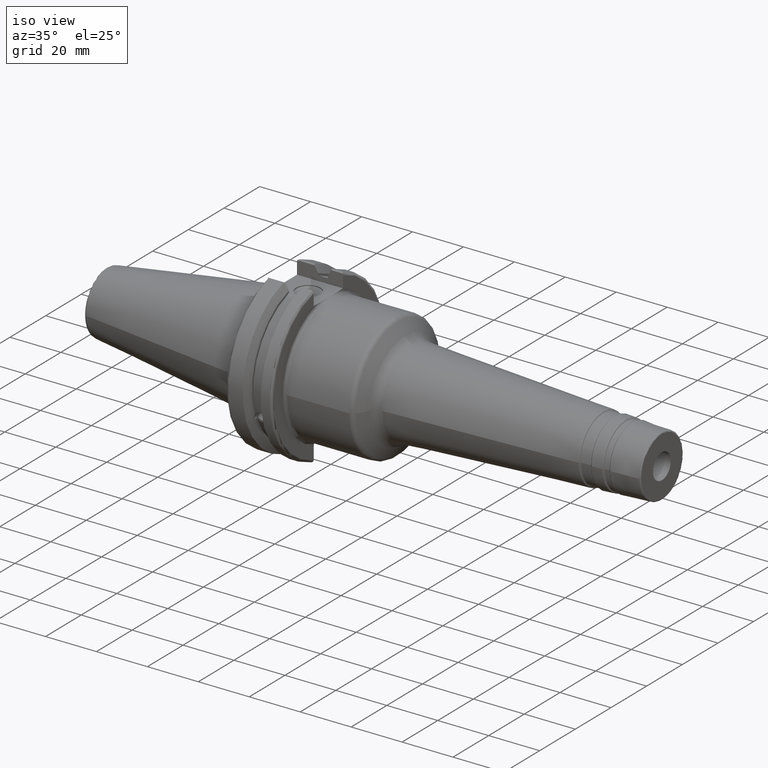
[diagram: clean part render]
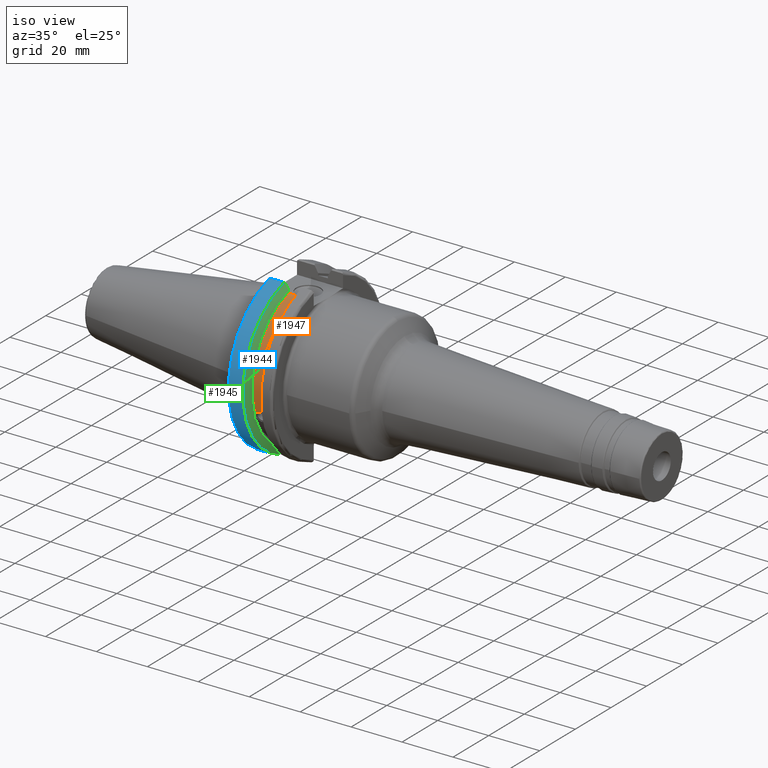
[diagram: same view with three faces highlighted in distinct colors, each labeled with its STEP entity id]
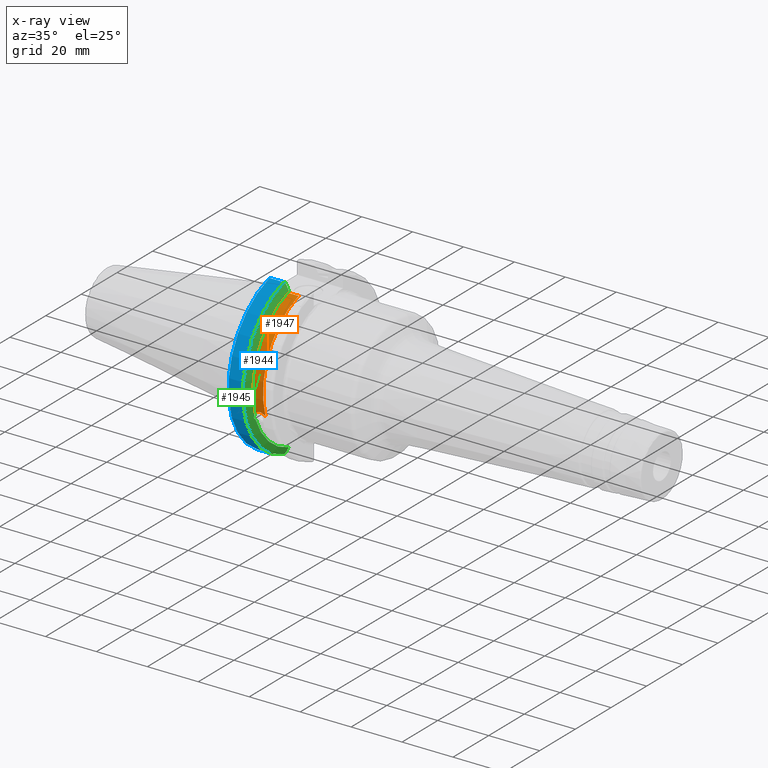
[diagram: x-ray of the same camera — body ghosted, the three highlighted faces saturated]
A machine part, iso view with three faces highlighted in distinct colors.
The next image is the same camera in x-ray (body ghosted, the three faces saturated) — at least one of them is partly hidden behind the body in this view.
Their STEP definitions:

[orange] entity #1947 — the highlighted cylindrical surface (partial cylindrical patch) has radius 28.15 mm, axis along (1, 0, 0).
#80=CYLINDRICAL_SURFACE('',#2223,28.15);
#92=B_SPLINE_CURVE_WITH_KNOTS('',3,(#3221,#3222,#3223,#3224,#3225,#3226,
#3227,#3228,#3229,#3230,#3231,#3232,#3233,#3234),.UNSPECIFIED.,.F.,.F.,
(4,2,2,2,2,2,4),(0.401639126382403,0.474814416953736,0.553950208498303,
0.63308600004287,0.712221791587437,0.791357583132004,0.864532873703336),
 .UNSPECIFIED.);
#234=LINE('',#3629,#329);
#329=VECTOR('',#2671,10.);
#486=FACE_OUTER_BOUND('',#608,.T.);
#608=EDGE_LOOP('',(#1811,#1812,#1813,#1814));
#739=CIRCLE('',#2222,28.15);
#740=CIRCLE('',#2224,28.15);
#826=VERTEX_POINT('',#3218);
#827=VERTEX_POINT('',#3220);
#902=VERTEX_POINT('',#3626);
#903=VERTEX_POINT('',#3628);
#1059=EDGE_CURVE('',#827,#826,#92,.T.);
#1162=EDGE_CURVE('',#903,#902,#234,.T.);
#1229=EDGE_CURVE('',#902,#827,#739,.T.);
#1230=EDGE_CURVE('',#903,#826,#740,.T.);
#1811=ORIENTED_EDGE('',*,*,#1059,.T.);
#1812=ORIENTED_EDGE('',*,*,#1230,.F.);
#1813=ORIENTED_EDGE('',*,*,#1162,.T.);
#1814=ORIENTED_EDGE('',*,*,#1229,.T.);
#1947=ADVANCED_FACE('',(#486),#80,.T.);
#2222=AXIS2_PLACEMENT_3D('',#3815,#2821,#2822);
#2223=AXIS2_PLACEMENT_3D('',#3816,#2823,#2824);
#2224=AXIS2_PLACEMENT_3D('',#3817,#2825,#2826);
#2671=DIRECTION('',(-1.,0.,0.));
#2821=DIRECTION('center_axis',(1.,0.,0.));
#2822=DIRECTION('ref_axis',(0.,0.,-1.));
#2823=DIRECTION('center_axis',(1.,0.,0.));
#2824=DIRECTION('ref_axis',(0.,-0.887654187951484,0.46051063246378));
#2825=DIRECTION('center_axis',(1.,0.,0.));
#2826=DIRECTION('ref_axis',(0.,0.,-1.));
#3218=CARTESIAN_POINT('',(13.091,-26.734714844398,-8.81348524641212));
#3220=CARTESIAN_POINT('',(9.261,-26.734714844398,-8.81348524641212));
#3221=CARTESIAN_POINT('Ctrl Pts',(9.261,-26.734714844398,-8.81348524641212));
#3222=CARTESIAN_POINT('Ctrl Pts',(9.36723057097183,-26.8086519721597,-8.58920529678291));
#3223=CARTESIAN_POINT('Ctrl Pts',(9.51872013770509,-26.8729987454904,-8.38416529997369));
#3224=CARTESIAN_POINT('Ctrl Pts',(9.87747062657411,-26.9778908791383,-8.04056861831091));
#3225=CARTESIAN_POINT('Ctrl Pts',(10.1135450112988,-27.0233016799732,-7.88512567185902));
#3226=CARTESIAN_POINT('Ctrl Pts',(10.6309125426388,-27.0826966800569,-7.6786444840004));
#3227=CARTESIAN_POINT('Ctrl Pts',(10.9122140281848,-27.0968804077294,-7.62768458768513));
#3228=CARTESIAN_POINT('Ctrl Pts',(11.4397859718152,-27.0968804077294,-7.62768458768513));
#3229=CARTESIAN_POINT('Ctrl Pts',(11.7210874573612,-27.0826966800569,-7.6786444840004));
#3230=CARTESIAN_POINT('Ctrl Pts',(12.2384549887012,-27.0233016799732,-7.88512567185903));
#3231=CARTESIAN_POINT('Ctrl Pts',(12.4745293734259,-26.9778908791383,-8.04056861831091));
#3232=CARTESIAN_POINT('Ctrl Pts',(12.8332798622949,-26.8729987454904,-8.3841652999737));
#3233=CARTESIAN_POINT('Ctrl Pts',(12.9847694290282,-26.8086519721597,-8.58920529678291));
#3234=CARTESIAN_POINT('Ctrl Pts',(13.091,-26.734714844398,-8.81348524641212));
#3626=CARTESIAN_POINT('',(9.261,-8.19,26.932255754021));
#3628=CARTESIAN_POINT('',(13.091,-8.19,26.932255754021));
#3629=CARTESIAN_POINT('',(11.176,-8.19,26.932255754021));
#3815=CARTESIAN_POINT('Origin',(9.261,0.,0.));
#3816=CARTESIAN_POINT('Origin',(11.176,0.,0.));
#3817=CARTESIAN_POINT('Origin',(13.091,0.,0.));

[blue] entity #1944 — the highlighted cylindrical surface (partial cylindrical patch) has radius 31.75 mm, axis along (1, 0, 0).
#79=CYLINDRICAL_SURFACE('',#2217,31.75);
#245=LINE('',#3684,#340);
#250=LINE('',#3741,#345);
#340=VECTOR('',#2698,10.);
#345=VECTOR('',#2733,10.);
#483=FACE_OUTER_BOUND('',#605,.T.);
#605=EDGE_LOOP('',(#1795,#1796,#1797,#1798));
#713=CIRCLE('',#2163,31.75);
#737=CIRCLE('',#2218,31.75);
#908=VERTEX_POINT('',#3651);
#909=VERTEX_POINT('',#3660);
#914=VERTEX_POINT('',#3683);
#923=VERTEX_POINT('',#3737);
#1172=EDGE_CURVE('',#908,#909,#713,.T.);
#1181=EDGE_CURVE('',#909,#914,#245,.T.);
#1198=EDGE_CURVE('',#923,#908,#250,.T.);
#1227=EDGE_CURVE('',#914,#923,#737,.T.);
#1795=ORIENTED_EDGE('',*,*,#1172,.F.);
#1796=ORIENTED_EDGE('',*,*,#1198,.F.);
#1797=ORIENTED_EDGE('',*,*,#1227,.F.);
#1798=ORIENTED_EDGE('',*,*,#1181,.F.);
#1944=ADVANCED_FACE('',(#483),#79,.T.);
#2163=AXIS2_PLACEMENT_3D('',#3661,#2682,#2683);
#2217=AXIS2_PLACEMENT_3D('',#3810,#2811,#2812);
#2218=AXIS2_PLACEMENT_3D('',#3811,#2813,#2814);
#2682=DIRECTION('center_axis',(-1.,0.,0.));
#2683=DIRECTION('ref_axis',(0.,-1.,1.60812264967664E-16));
#2698=DIRECTION('',(1.,0.,0.));
#2733=DIRECTION('',(-1.,0.,0.));
#2811=DIRECTION('center_axis',(1.,0.,0.));
#2812=DIRECTION('ref_axis',(0.,-1.,1.22464679914735E-16));
#2813=DIRECTION('center_axis',(1.,0.,0.));
#2814=DIRECTION('ref_axis',(0.,0.,-1.));
#3651=CARTESIAN_POINT('',(2.,-8.67204822802685,-30.5427254764662));
#3660=CARTESIAN_POINT('',(2.,-8.67204822802685,30.5427254764662));
#3661=CARTESIAN_POINT('Origin',(2.,0.,0.));
#3683=CARTESIAN_POINT('',(7.64983323092436,-8.67204822802685,30.5427254764662));
#3684=CARTESIAN_POINT('',(4.32491661546218,-8.67204822802685,30.5427254764662));
#3737=CARTESIAN_POINT('',(7.64983323092436,-8.67204822802685,-30.5427254764662));
#3741=CARTESIAN_POINT('',(4.32491661546218,-8.67204822802685,-30.5427254764662));
#3810=CARTESIAN_POINT('Origin',(4.32491661546218,0.,0.));
#3811=CARTESIAN_POINT('Origin',(7.64983323092436,0.,0.));

[green] entity #1945 — the highlighted conical surface has half-angle 60 deg.
#25=(
BOUNDED_CURVE()
B_SPLINE_CURVE(2,(#3623,#3624,#3625),.UNSPECIFIED.,.F.,.F.)
B_SPLINE_CURVE_WITH_KNOTS((3,3),(0.,0.27654914279601),.UNSPECIFIED.)
CURVE()
GEOMETRIC_REPRESENTATION_ITEM()
RATIONAL_B_SPLINE_CURVE((1.,1.00095203903532,1.00031614444885))
REPRESENTATION_ITEM('')
);
#26=(
BOUNDED_CURVE()
B_SPLINE_CURVE(2,(#3635,#3636,#3637),.UNSPECIFIED.,.F.,.F.)
B_SPLINE_CURVE_WITH_KNOTS((3,3),(0.0550586467392668,0.331607789535851),
 .UNSPECIFIED.)
CURVE()
GEOMETRIC_REPRESENTATION_ITEM()
RATIONAL_B_SPLINE_CURVE((1.0003161444496,1.00095203903759,1.))
REPRESENTATION_ITEM('')
);
#27=(
BOUNDED_CURVE()
B_SPLINE_CURVE(2,(#3685,#3686,#3687),.UNSPECIFIED.,.F.,.F.)
B_SPLINE_CURVE_WITH_KNOTS((3,3),(0.,0.0639048713675873),.UNSPECIFIED.)
CURVE()
GEOMETRIC_REPRESENTATION_ITEM()
RATIONAL_B_SPLINE_CURVE((1.,1.00028444218292,1.00047644010589))
REPRESENTATION_ITEM('')
);
#28=(
BOUNDED_CURVE()
B_SPLINE_CURVE(2,(#3738,#3739,#3740),.UNSPECIFIED.,.F.,.F.)
B_SPLINE_CURVE_WITH_KNOTS((3,3),(0.329353533631225,0.393258405001025),
 .UNSPECIFIED.)
CURVE()
GEOMETRIC_REPRESENTATION_ITEM()
RATIONAL_B_SPLINE_CURVE((1.00047644010574,1.00028444218284,1.))
REPRESENTATION_ITEM('')
);
#93=B_SPLINE_CURVE_WITH_KNOTS('',3,(#3238,#3239,#3240,#3241,#3242,#3243,
#3244,#3245,#3246,#3247,#3248,#3249,#3250,#3251),.UNSPECIFIED.,.F.,.F.,
(4,2,2,2,2,2,4),(0.451995700189025,0.464547828547661,0.504528771685166,
0.544509714822671,0.584490657960176,0.624471601097681,0.637023729456317),
 .UNSPECIFIED.);
#381=CONICAL_SURFACE('',#2219,30.3546886482472,1.0471975511966);
#484=FACE_OUTER_BOUND('',#606,.T.);
#606=EDGE_LOOP('',(#1799,#1800,#1801,#1802,#1803,#1804,#1805,#1806));
#696=CIRCLE('',#2115,28.9593772964944);
#737=CIRCLE('',#2218,31.75);
#738=CIRCLE('',#2220,28.9593772964944);
#828=VERTEX_POINT('',#3235);
#829=VERTEX_POINT('',#3237);
#846=VERTEX_POINT('',#3330);
#900=VERTEX_POINT('',#3620);
#901=VERTEX_POINT('',#3622);
#904=VERTEX_POINT('',#3634);
#914=VERTEX_POINT('',#3683);
#923=VERTEX_POINT('',#3737);
#1061=EDGE_CURVE('',#829,#828,#93,.T.);
#1085=EDGE_CURVE('',#829,#846,#696,.T.);
#1160=EDGE_CURVE('',#901,#900,#25,.T.);
#1166=EDGE_CURVE('',#904,#846,#26,.T.);
#1182=EDGE_CURVE('',#914,#900,#27,.T.);
#1197=EDGE_CURVE('',#904,#923,#28,.T.);
#1227=EDGE_CURVE('',#914,#923,#737,.T.);
#1228=EDGE_CURVE('',#901,#828,#738,.T.);
#1799=ORIENTED_EDGE('',*,*,#1061,.T.);
#1800=ORIENTED_EDGE('',*,*,#1228,.F.);
#1801=ORIENTED_EDGE('',*,*,#1160,.T.);
#1802=ORIENTED_EDGE('',*,*,#1182,.F.);
#1803=ORIENTED_EDGE('',*,*,#1227,.T.);
#1804=ORIENTED_EDGE('',*,*,#1197,.F.);
#1805=ORIENTED_EDGE('',*,*,#1166,.T.);
#1806=ORIENTED_EDGE('',*,*,#1085,.F.);
#1945=ADVANCED_FACE('',(#484),#381,.T.);
#2115=AXIS2_PLACEMENT_3D('',#3331,#2551,#2552);
#2218=AXIS2_PLACEMENT_3D('',#3811,#2813,#2814);
#2219=AXIS2_PLACEMENT_3D('',#3812,#2815,#2816);
#2220=AXIS2_PLACEMENT_3D('',#3813,#2817,#2818);
#2551=DIRECTION('center_axis',(1.,0.,0.));
#2552=DIRECTION('ref_axis',(0.,0.,-1.));
#2813=DIRECTION('center_axis',(1.,0.,0.));
#2814=DIRECTION('ref_axis',(0.,0.,-1.));
#2815=DIRECTION('center_axis',(-1.,0.,0.));
#2816=DIRECTION('ref_axis',(0.,-1.,-1.22464679914735E-16));
#2817=DIRECTION('center_axis',(1.,0.,0.));
#2818=DIRECTION('ref_axis',(0.,0.,-1.));
#3235=CARTESIAN_POINT('',(9.261,-27.4956274489925,-9.09043478536247));
#3237=CARTESIAN_POINT('',(9.261,-26.9060914640648,-10.7101715919071));
#3238=CARTESIAN_POINT('Ctrl Pts',(9.26099999999999,-26.9060914640648,-10.7101715919071));
#3239=CARTESIAN_POINT('Ctrl Pts',(9.24687959280038,-26.9406927482839,-10.6893765730703));
#3240=CARTESIAN_POINT('Ctrl Pts',(9.23340701821433,-26.9744191989197,-10.6676007180673));
#3241=CARTESIAN_POINT('Ctrl Pts',(9.18001855884095,-27.1113422433189,-10.5723885976054));
#3242=CARTESIAN_POINT('Ctrl Pts',(9.14188029158246,-27.2180531796526,-10.4801333026531));
#3243=CARTESIAN_POINT('Ctrl Pts',(9.08968935539424,-27.3968610665578,-10.2639559818059));
#3244=CARTESIAN_POINT('Ctrl Pts',(9.076,-27.4684373304961,-10.139516340139));
#3245=CARTESIAN_POINT('Ctrl Pts',(9.076,-27.559599249844,-9.8890510252165));
#3246=CARTESIAN_POINT('Ctrl Pts',(9.08968935539424,-27.5847569104122,-9.74771639360671));
#3247=CARTESIAN_POINT('Ctrl Pts',(9.14188029158246,-27.5867382255984,-9.46717946402648));
#3248=CARTESIAN_POINT('Ctrl Pts',(9.18001855884095,-27.5642934663232,-9.32791534028656));
#3249=CARTESIAN_POINT('Ctrl Pts',(9.23340701821433,-27.5206055003512,-9.16696618806878));
#3250=CARTESIAN_POINT('Ctrl Pts',(9.24687959280038,-27.5087667900418,-9.12860597076218));
#3251=CARTESIAN_POINT('Ctrl Pts',(9.261,-27.4956274489925,-9.09043478536247));
#3330=CARTESIAN_POINT('',(9.261,-8.19,-27.7771386827498));
#3331=CARTESIAN_POINT('Origin',(9.261,0.,0.));
#3620=CARTESIAN_POINT('',(7.92858530351256,-8.19,30.1755016258903));
#3622=CARTESIAN_POINT('',(9.261,-8.19,27.7771386827498));
#3623=CARTESIAN_POINT('Ctrl Pts',(9.261,-8.19,27.7771386827498));
#3624=CARTESIAN_POINT('Ctrl Pts',(8.62236356152083,-8.19,28.930368953976));
#3625=CARTESIAN_POINT('Ctrl Pts',(7.92858530351256,-8.19,30.1755016258903));
#3634=CARTESIAN_POINT('',(7.92858530351256,-8.19,-30.1755016258903));
#3635=CARTESIAN_POINT('Ctrl Pts',(7.92858530351256,-8.19,-30.1755016258903));
#3636=CARTESIAN_POINT('Ctrl Pts',(8.62236356152658,-8.19,-28.9303689539657));
#3637=CARTESIAN_POINT('Ctrl Pts',(9.261,-8.19,-27.7771386827498));
#3683=CARTESIAN_POINT('',(7.64983323092436,-8.67204822802685,30.5427254764662));
#3685=CARTESIAN_POINT('Ctrl Pts',(7.64983323092436,-8.67204822802685,30.5427254764662));
#3686=CARTESIAN_POINT('Ctrl Pts',(7.79089148121629,-8.42917748262643,30.357706789263));
#3687=CARTESIAN_POINT('Ctrl Pts',(7.92858530351256,-8.19,30.1755016258903));
#3737=CARTESIAN_POINT('',(7.64983323092436,-8.67204822802685,-30.5427254764662));
#3738=CARTESIAN_POINT('Ctrl Pts',(7.92858530351256,-8.19,-30.1755016258903));
#3739=CARTESIAN_POINT('Ctrl Pts',(7.7908914812116,-8.42917748263465,-30.3577067892692));
#3740=CARTESIAN_POINT('Ctrl Pts',(7.64983323092436,-8.67204822802686,-30.5427254764662));
#3811=CARTESIAN_POINT('Origin',(7.64983323092436,0.,0.));
#3812=CARTESIAN_POINT('Origin',(8.45541661546218,0.,0.));
#3813=CARTESIAN_POINT('Origin',(9.261,0.,0.));